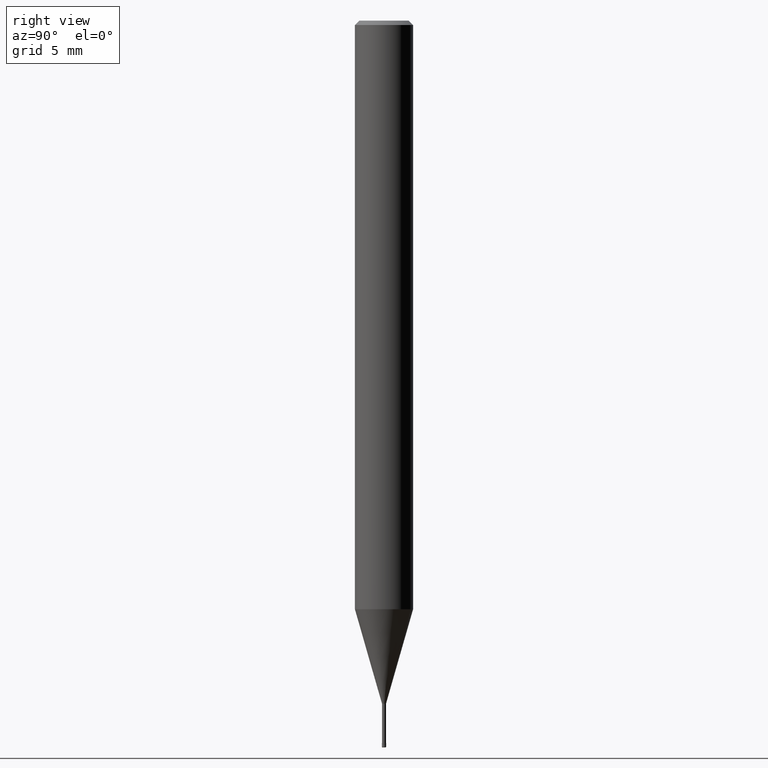
[diagram: clean part render]
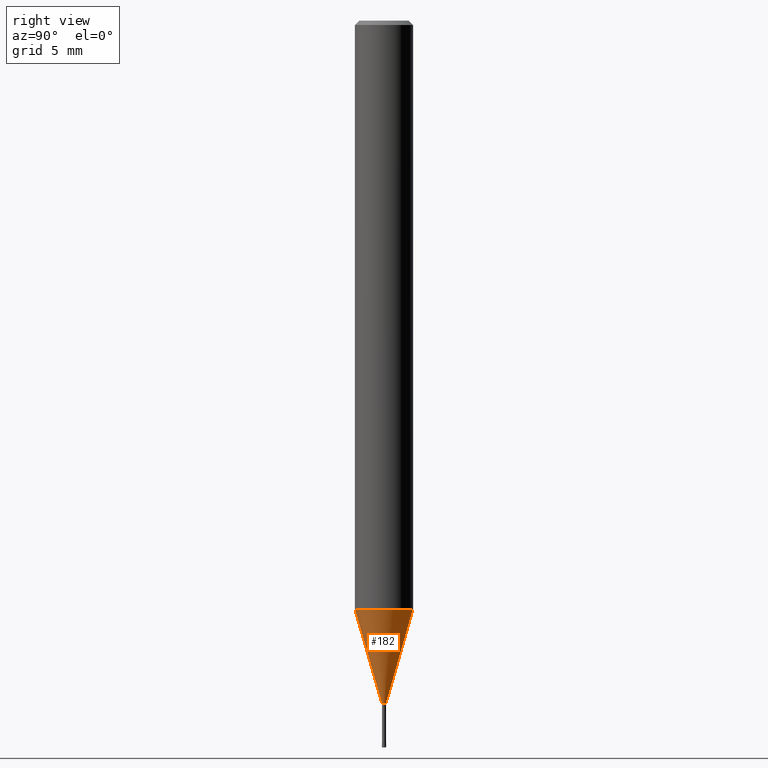
[diagram: same view with one face highlighted and labeled with its STEP entity id]
A machine part, right view. The second image highlights one B-rep face of the part: STEP entity #182.
In plain terms, the highlighted conical surface has half-angle 16 deg.
Its self-contained STEP definition (entity closure, byte-faithful):
#104=VERTEX_POINT('',#259);
#118=VERTEX_POINT('',#276);
#136=VERTEX_POINT('',#296);
#140=EDGE_CURVE('',#104,#118,#300,.T.);
#152=EDGE_CURVE('',#136,#216,#314,.T.);
#156=EDGE_CURVE('',#136,#104,#318,.T.);
#182=ADVANCED_FACE('',(#347),#348,.T.);
#202=EDGE_CURVE('',#118,#216,#370,.T.);
#216=VERTEX_POINT('',#384);
#259=CARTESIAN_POINT('',(0.0,0.13495,-47.0));
#276=CARTESIAN_POINT('',(1.6526062744833E-017,-0.13495,-47.0));
#296=CARTESIAN_POINT('',(0.0,1.99995,-40.496));
#300=CIRCLE('',#472,0.13495);
#314=CIRCLE('',#488,1.99995);
#318=LINE('',#494,#495);
#347=FACE_OUTER_BOUND('',#533,.T.);
#348=CONICAL_SURFACE('',#534,1.06745,0.279253818445948);
#370=LINE('',#563,#564);
#384=CARTESIAN_POINT('',(2.44915147732706E-016,-1.99995,-40.496));
#472=AXIS2_PLACEMENT_3D('',#670,#671,#672);
#488=AXIS2_PLACEMENT_3D('',#692,#693,#694);
#494=CARTESIAN_POINT('',(-1.3072060523877E-016,1.06745,-43.748));
#495=VECTOR('',#698,1.0);
#533=EDGE_LOOP('',(#740,#741,#742,#743));
#534=AXIS2_PLACEMENT_3D('',#744,#745,#746);
#563=CARTESIAN_POINT('',(1.3072060523877E-016,-1.06745,-43.748));
#564=VECTOR('',#774,1.0);
#670=CARTESIAN_POINT('',(0.0,0.0,-47.0));
#671=DIRECTION('',(0.0,0.0,-1.0));
#672=DIRECTION('',(0.0,1.0,0.0));
#692=CARTESIAN_POINT('',(0.0,0.0,-40.496));
#693=DIRECTION('',(0.0,0.0,-1.0));
#694=DIRECTION('',(0.0,1.0,0.0));
#698=DIRECTION('',(3.3754859704966E-017,-0.275638449854572,-0.961261382227419));
#740=ORIENTED_EDGE('',*,*,#156,.F.);
#741=ORIENTED_EDGE('',*,*,#152,.T.);
#742=ORIENTED_EDGE('',*,*,#202,.F.);
#743=ORIENTED_EDGE('',*,*,#140,.F.);
#744=CARTESIAN_POINT('',(0.0,0.0,-43.748));
#745=DIRECTION('',(-0.0,-0.0,1.0));
#746=DIRECTION('',(0.0,1.0,0.0));
#774=DIRECTION('',(3.3754859704966E-017,-0.275638449854572,0.961261382227419));